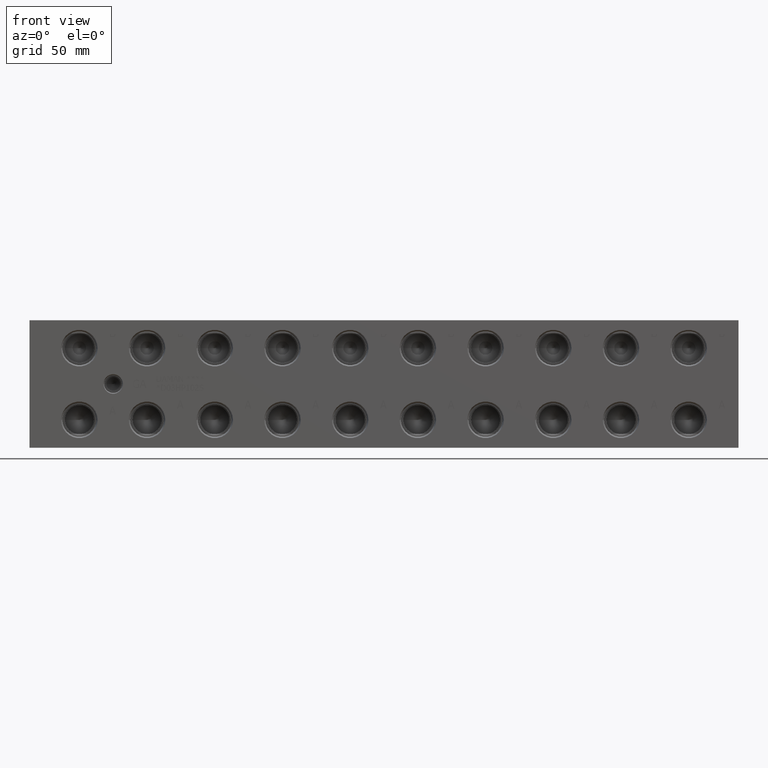
[diagram: clean part render]
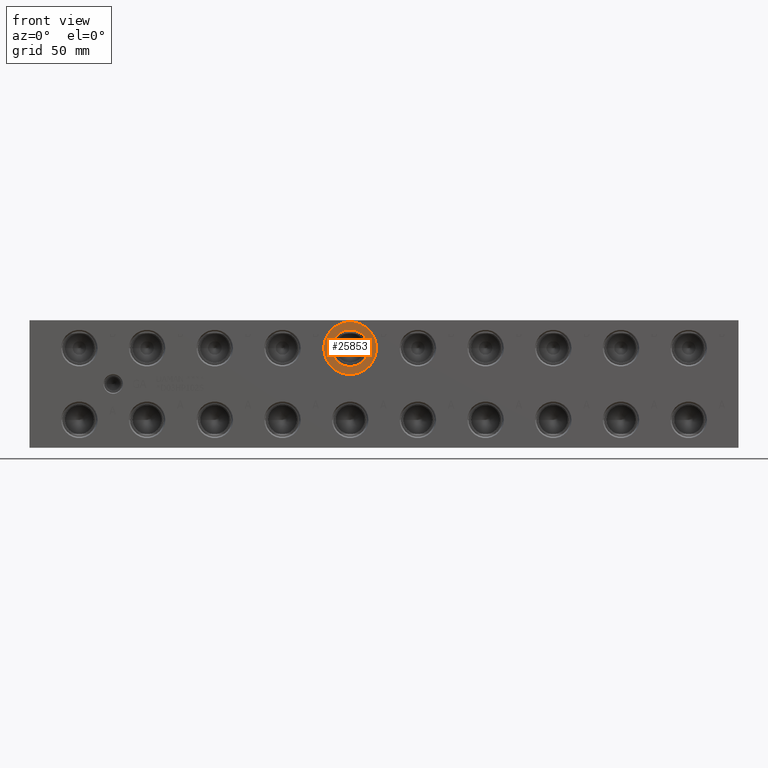
[diagram: same view with one face highlighted and labeled with its STEP entity id]
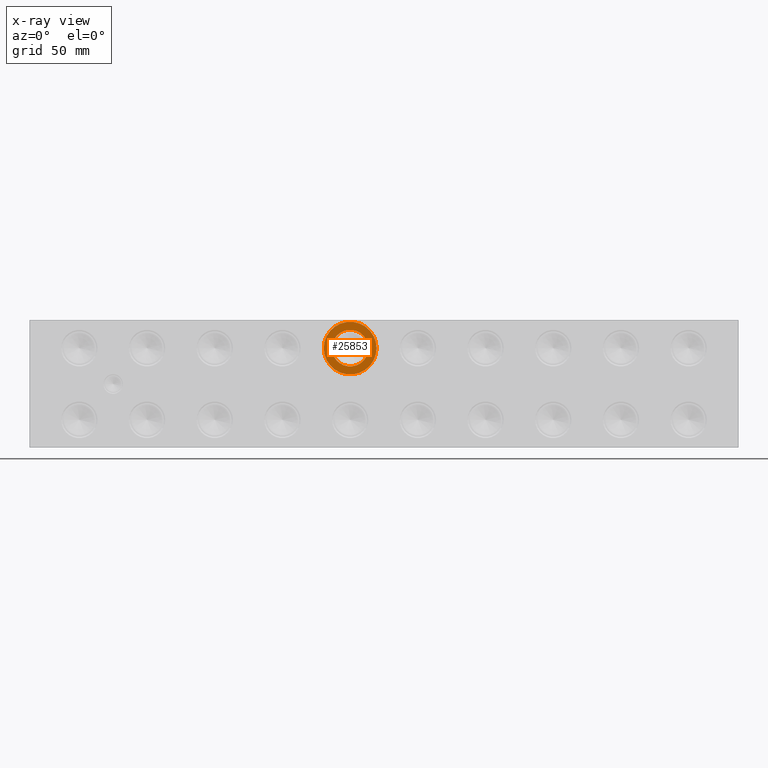
[diagram: x-ray of the same camera — body ghosted, the highlighted face saturated]
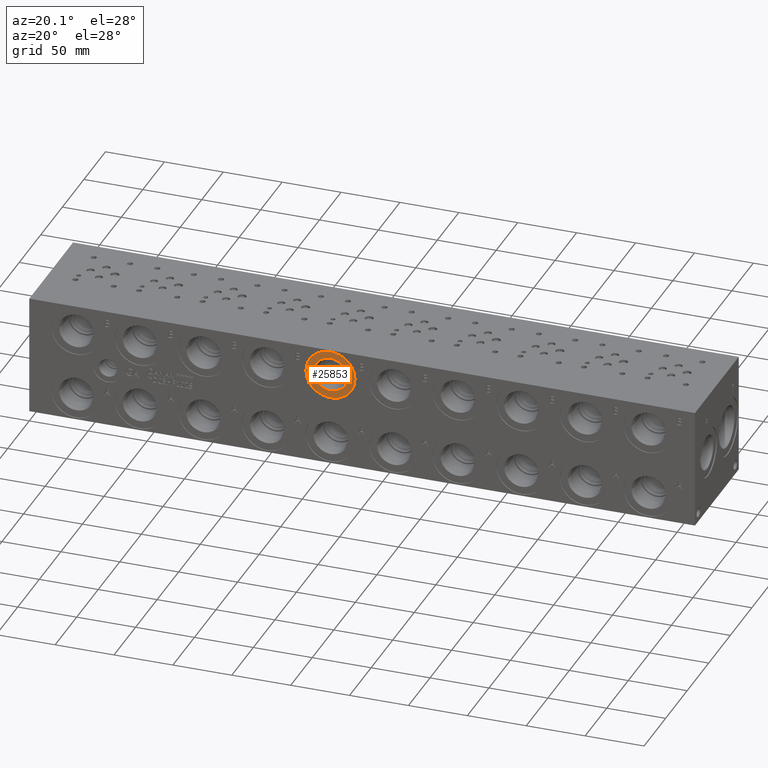
[diagram: same view with one face highlighted and labeled with its STEP entity id]
A machine part, front view. The second image highlights one B-rep face of the part: STEP entity #25853.
The next image is the same camera in x-ray: the body ghosted, the highlighted face saturated — about 0% of this face is hidden behind the body in this view.
A second angle (auxiliary view) of the same face is appended — the face is thin or edge-on in the first view.
In plain terms, the highlighted planar face has unit normal (0, 1, 0).
Its self-contained STEP definition (entity closure, byte-faithful):
#761=CIRCLE('',#27254,21.0185);
#762=CIRCLE('',#27255,21.0185);
#763=CIRCLE('',#27257,14.5923);
#764=CIRCLE('',#27258,14.5923);
#1651=FACE_BOUND('',#4910,.T.);
#2375=PLANE('',#27256);
#3385=FACE_OUTER_BOUND('',#4909,.T.);
#4909=EDGE_LOOP('',(#21577,#21578));
#4910=EDGE_LOOP('',(#21579,#21580));
#12016=VERTEX_POINT('',#43501);
#12017=VERTEX_POINT('',#43503);
#12018=VERTEX_POINT('',#43507);
#12019=VERTEX_POINT('',#43508);
#15419=EDGE_CURVE('',#12016,#12017,#761,.T.);
#15420=EDGE_CURVE('',#12017,#12016,#762,.T.);
#15421=EDGE_CURVE('',#12018,#12019,#763,.T.);
#15422=EDGE_CURVE('',#12019,#12018,#764,.T.);
#21577=ORIENTED_EDGE('',*,*,#15420,.F.);
#21578=ORIENTED_EDGE('',*,*,#15419,.F.);
#21579=ORIENTED_EDGE('',*,*,#15421,.T.);
#21580=ORIENTED_EDGE('',*,*,#15422,.T.);
#25853=ADVANCED_FACE('',(#3385,#1651),#2375,.F.);
#27254=AXIS2_PLACEMENT_3D('',#43504,#32076,#32077);
#27255=AXIS2_PLACEMENT_3D('',#43505,#32078,#32079);
#27256=AXIS2_PLACEMENT_3D('',#43506,#32080,#32081);
#27257=AXIS2_PLACEMENT_3D('',#43509,#32082,#32083);
#27258=AXIS2_PLACEMENT_3D('',#43510,#32084,#32085);
#32076=DIRECTION('center_axis',(0.,1.,0.));
#32077=DIRECTION('ref_axis',(1.,0.,0.));
#32078=DIRECTION('center_axis',(0.,1.,0.));
#32079=DIRECTION('ref_axis',(1.,0.,0.));
#32080=DIRECTION('center_axis',(0.,1.,0.));
#32081=DIRECTION('ref_axis',(0.,0.,1.));
#32082=DIRECTION('center_axis',(0.,1.,0.));
#32083=DIRECTION('ref_axis',(1.,0.,0.));
#32084=DIRECTION('center_axis',(0.,1.,0.));
#32085=DIRECTION('ref_axis',(1.,0.,0.));
#43501=CARTESIAN_POINT('',(234.5563,0.7874,79.375));
#43503=CARTESIAN_POINT('',(276.5933,0.7874,79.375));
#43504=CARTESIAN_POINT('Origin',(255.5748,0.7874,79.375));
#43505=CARTESIAN_POINT('Origin',(255.5748,0.7874,79.375));
#43506=CARTESIAN_POINT('Origin',(270.1671,0.7874,79.375));
#43507=CARTESIAN_POINT('',(270.1671,0.7874,79.375));
#43508=CARTESIAN_POINT('',(240.9825,0.787399999999995,79.375));
#43509=CARTESIAN_POINT('Origin',(255.5748,0.7874,79.375));
#43510=CARTESIAN_POINT('Origin',(255.5748,0.7874,79.375));